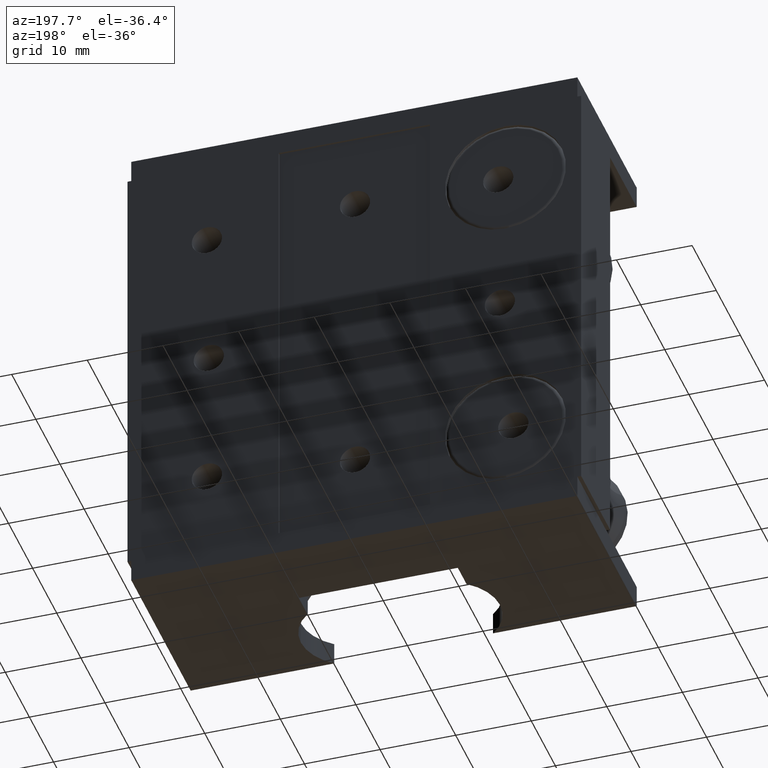
[diagram: clean part render]
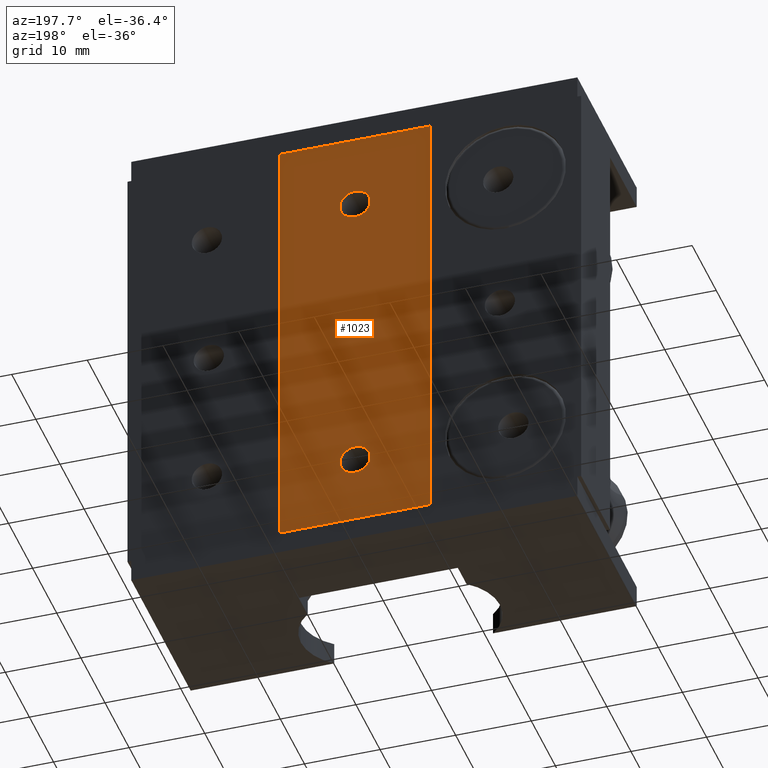
[diagram: same view with one face highlighted and labeled with its STEP entity id]
A machine part, auxiliary view. The second image highlights one B-rep face of the part: STEP entity #1023.
In plain terms, the highlighted planar face has unit normal (0, -1, 0).
Its self-contained STEP definition (entity closure, byte-faithful):
#14 = VERTEX_POINT ( 'NONE', #1616 ) ;
#62 = EDGE_LOOP ( 'NONE', ( #161, #2757 ) ) ;
#78 = CARTESIAN_POINT ( 'NONE',  ( 10.00000000000000000, 11.70000000000000107, 30.00000000000001066 ) ) ;
#161 = ORIENTED_EDGE ( 'NONE', *, *, #977, .F. ) ;
#177 = DIRECTION ( 'NONE',  ( 0.000000000000000000, 0.000000000000000000, -1.000000000000000000 ) ) ;
#205 = CARTESIAN_POINT ( 'NONE',  ( 0.000000000000000000, 11.70000000000000107, 0.000000000000000000 ) ) ;
#278 = EDGE_CURVE ( 'NONE', #776, #915, #754, .T. ) ;
#292 = AXIS2_PLACEMENT_3D ( 'NONE', #1396, #2180, #610 ) ;
#319 = EDGE_CURVE ( 'NONE', #849, #915, #2050, .T. ) ;
#404 = VECTOR ( 'NONE', #608, 1000.000000000000000 ) ;
#471 = AXIS2_PLACEMENT_3D ( 'NONE', #3051, #985, #481 ) ;
#481 = DIRECTION ( 'NONE',  ( 0.000000000000000000, 0.000000000000000000, -1.000000000000000000 ) ) ;
#608 = DIRECTION ( 'NONE',  ( 0.000000000000000000, 0.000000000000000000, -1.000000000000000000 ) ) ;
#610 = DIRECTION ( 'NONE',  ( 0.000000000000000000, 0.000000000000000000, -1.000000000000000000 ) ) ;
#751 = VECTOR ( 'NONE', #791, 1000.000000000000000 ) ;
#754 = LINE ( 'NONE', #1776, #751 ) ;
#776 = VERTEX_POINT ( 'NONE', #78 ) ;
#791 = DIRECTION ( 'NONE',  ( -1.000000000000000000, 0.000000000000000000, 1.156482317317871478E-16 ) ) ;
#792 = EDGE_CURVE ( 'NONE', #1889, #2609, #2370, .T. ) ;
#849 = VERTEX_POINT ( 'NONE', #1147 ) ;
#852 = EDGE_CURVE ( 'NONE', #2609, #1889, #2166, .T. ) ;
#873 = CARTESIAN_POINT ( 'NONE',  ( 2.449293598294707893E-16, 11.70000000000000107, 22.00000000000001421 ) ) ;
#915 = VERTEX_POINT ( 'NONE', #2124 ) ;
#925 = DIRECTION ( 'NONE',  ( 1.000000000000000000, 0.000000000000000000, -1.156482317317871725E-16 ) ) ;
#977 = EDGE_CURVE ( 'NONE', #1227, #1324, #3255, .T. ) ;
#985 = DIRECTION ( 'NONE',  ( 0.000000000000000000, 1.000000000000000000, 0.000000000000000000 ) ) ;
#1023 = ADVANCED_FACE ( 'NONE', ( #2735, #2483, #1964 ), #1206, .F. ) ;
#1064 = EDGE_CURVE ( 'NONE', #1324, #1227, #3168, .T. ) ;
#1070 = ORIENTED_EDGE ( 'NONE', *, *, #1771, .T. ) ;
#1147 = CARTESIAN_POINT ( 'NONE',  ( -10.00000000000000000, 11.70000000000000107, -29.49999999999998579 ) ) ;
#1171 = AXIS2_PLACEMENT_3D ( 'NONE', #1708, #1947, #2467 ) ;
#1206 = PLANE ( 'NONE',  #1471 ) ;
#1227 = VERTEX_POINT ( 'NONE', #1604 ) ;
#1324 = VERTEX_POINT ( 'NONE', #873 ) ;
#1396 = CARTESIAN_POINT ( 'NONE',  ( 0.000000000000000000, 11.70000000000000107, 20.00000000000001066 ) ) ;
#1471 = AXIS2_PLACEMENT_3D ( 'NONE', #205, #2215, #177 ) ;
#1589 = ORIENTED_EDGE ( 'NONE', *, *, #278, .F. ) ;
#1604 = CARTESIAN_POINT ( 'NONE',  ( 0.000000000000000000, 11.70000000000000107, 18.00000000000001066 ) ) ;
#1616 = CARTESIAN_POINT ( 'NONE',  ( 10.00000000000000000, 11.70000000000000107, -29.49999999999998579 ) ) ;
#1703 = ORIENTED_EDGE ( 'NONE', *, *, #792, .F. ) ;
#1708 = CARTESIAN_POINT ( 'NONE',  ( 0.000000000000000000, 11.70000000000000107, 20.00000000000001066 ) ) ;
#1771 = EDGE_CURVE ( 'NONE', #776, #14, #2388, .T. ) ;
#1776 = CARTESIAN_POINT ( 'NONE',  ( 30.00000000000001421, 11.70000000000000107, 30.00000000000000711 ) ) ;
#1809 = CARTESIAN_POINT ( 'NONE',  ( -10.00000000000000000, 11.70000000000000107, 33.93310614136169079 ) ) ;
#1817 = EDGE_LOOP ( 'NONE', ( #1070, #3146, #2496, #1589 ) ) ;
#1845 = CARTESIAN_POINT ( 'NONE',  ( 10.00000000000000000, 11.70000000000000107, 33.93310614136169079 ) ) ;
#1888 = CARTESIAN_POINT ( 'NONE',  ( 0.000000000000000000, 11.70000000000000107, -20.00000000000001066 ) ) ;
#1889 = VERTEX_POINT ( 'NONE', #3239 ) ;
#1914 = CARTESIAN_POINT ( 'NONE',  ( -29.99999999999998579, 11.70000000000000107, -29.49999999999998579 ) ) ;
#1947 = DIRECTION ( 'NONE',  ( 0.000000000000000000, 1.000000000000000000, 0.000000000000000000 ) ) ;
#1964 = FACE_OUTER_BOUND ( 'NONE', #1817, .T. ) ;
#2050 = LINE ( 'NONE', #1809, #2285 ) ;
#2124 = CARTESIAN_POINT ( 'NONE',  ( -10.00000000000000000, 11.70000000000000107, 30.00000000000001066 ) ) ;
#2136 = ORIENTED_EDGE ( 'NONE', *, *, #852, .F. ) ;
#2166 = CIRCLE ( 'NONE', #2589, 2.000000000000001776 ) ;
#2178 = EDGE_LOOP ( 'NONE', ( #1703, #2136 ) ) ;
#2180 = DIRECTION ( 'NONE',  ( 0.000000000000000000, 1.000000000000000000, 0.000000000000000000 ) ) ;
#2215 = DIRECTION ( 'NONE',  ( 0.000000000000000000, -1.000000000000000000, -0.000000000000000000 ) ) ;
#2285 = VECTOR ( 'NONE', #2845, 1000.000000000000000 ) ;
#2336 = EDGE_CURVE ( 'NONE', #849, #14, #2456, .T. ) ;
#2361 = CARTESIAN_POINT ( 'NONE',  ( 2.449293598294707893E-16, 11.70000000000000107, -18.00000000000001066 ) ) ;
#2370 = CIRCLE ( 'NONE', #471, 2.000000000000001776 ) ;
#2388 = LINE ( 'NONE', #1845, #404 ) ;
#2456 = LINE ( 'NONE', #1914, #2705 ) ;
#2467 = DIRECTION ( 'NONE',  ( 0.000000000000000000, 0.000000000000000000, -1.000000000000000000 ) ) ;
#2483 = FACE_BOUND ( 'NONE', #2178, .T. ) ;
#2496 = ORIENTED_EDGE ( 'NONE', *, *, #319, .T. ) ;
#2589 = AXIS2_PLACEMENT_3D ( 'NONE', #1888, #2967, #3207 ) ;
#2609 = VERTEX_POINT ( 'NONE', #2361 ) ;
#2705 = VECTOR ( 'NONE', #925, 1000.000000000000000 ) ;
#2735 = FACE_BOUND ( 'NONE', #62, .T. ) ;
#2757 = ORIENTED_EDGE ( 'NONE', *, *, #1064, .F. ) ;
#2845 = DIRECTION ( 'NONE',  ( -0.000000000000000000, -0.000000000000000000, 1.000000000000000000 ) ) ;
#2967 = DIRECTION ( 'NONE',  ( 0.000000000000000000, 1.000000000000000000, 0.000000000000000000 ) ) ;
#3051 = CARTESIAN_POINT ( 'NONE',  ( 0.000000000000000000, 11.70000000000000107, -20.00000000000001066 ) ) ;
#3146 = ORIENTED_EDGE ( 'NONE', *, *, #2336, .F. ) ;
#3168 = CIRCLE ( 'NONE', #292, 2.000000000000001776 ) ;
#3207 = DIRECTION ( 'NONE',  ( 0.000000000000000000, 0.000000000000000000, -1.000000000000000000 ) ) ;
#3239 = CARTESIAN_POINT ( 'NONE',  ( 0.000000000000000000, 11.70000000000000107, -22.00000000000001421 ) ) ;
#3255 = CIRCLE ( 'NONE', #1171, 2.000000000000001776 ) ;